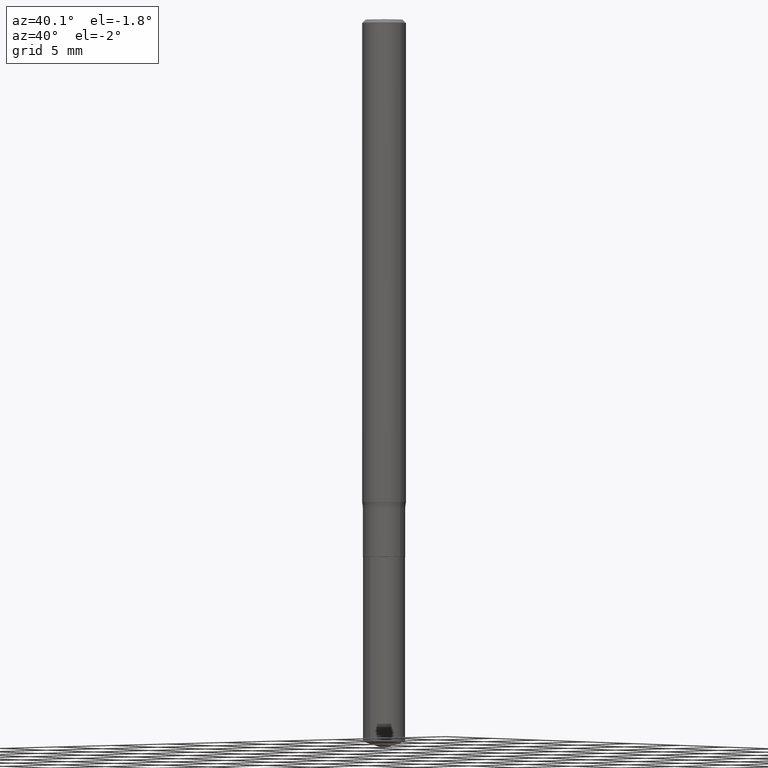
[diagram: clean part render]
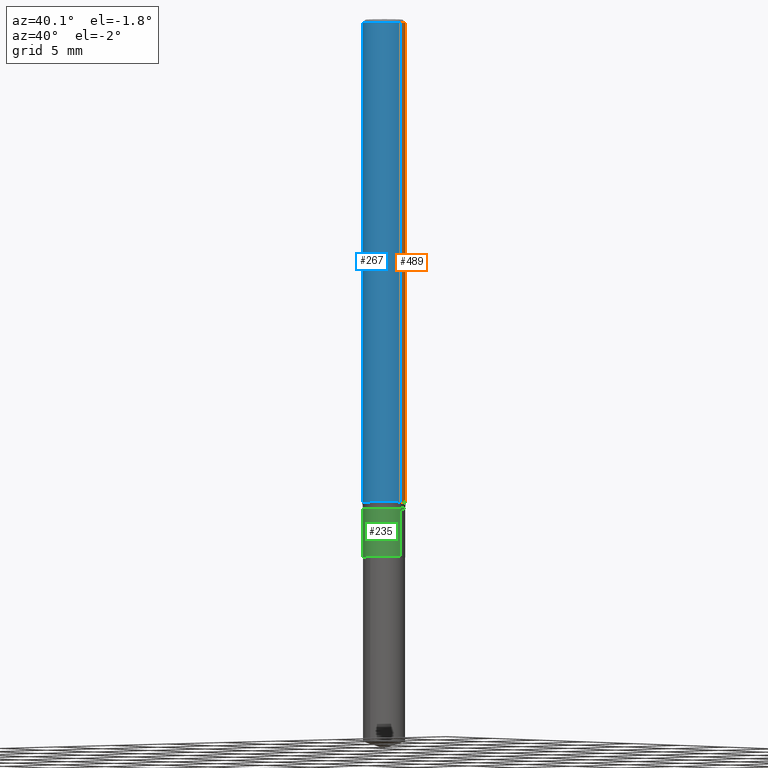
[diagram: same view with three faces highlighted in distinct colors, each labeled with its STEP entity id]
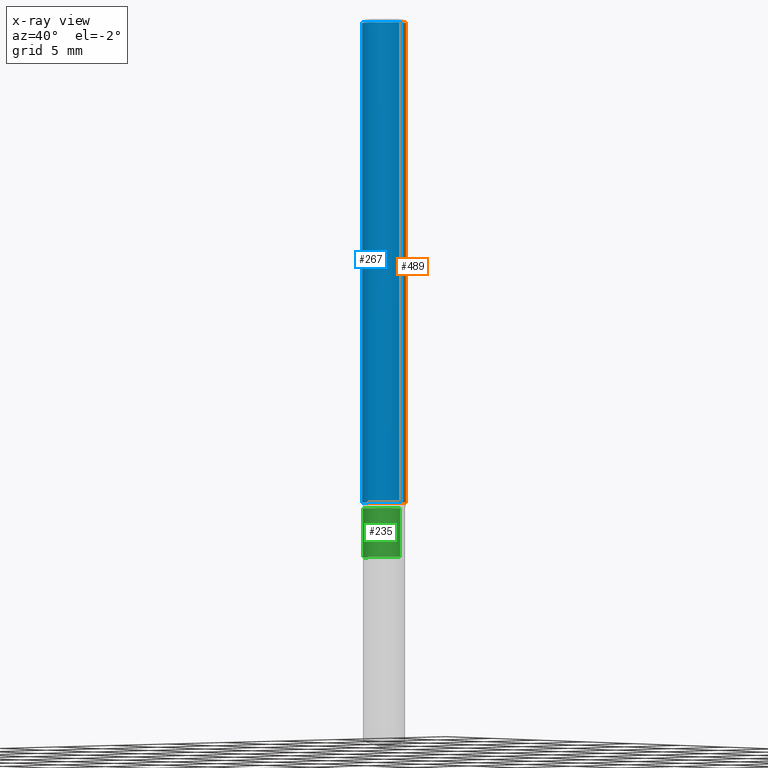
[diagram: x-ray of the same camera — body ghosted, the three highlighted faces saturated]
A machine part, auxiliary view with three faces highlighted in distinct colors.
The next image is the same camera in x-ray (body ghosted, the three faces saturated) — at least one of them is partly hidden behind the body in this view.
Their STEP definitions:

[orange] entity #489 — the highlighted cylindrical surface (edge-blend (fillet) strip) has radius 1.4999 mm, axis along (-0, 0, 1).
#13 = CARTESIAN_POINT ( 'NONE',  ( 3.189302213101490858E-29, -4.553478307640284611E-15, -1.304168020886234070 ) ) ;
#16 = AXIS2_PLACEMENT_3D ( 'NONE', #189, #236, #239 ) ;
#29 = AXIS2_PLACEMENT_3D ( 'NONE', #224, #327, #132 ) ;
#51 = EDGE_CURVE ( 'NONE', #458, #457, #301, .T. ) ;
#52 = DIRECTION ( 'NONE',  ( -2.445468806185136877E-29, 3.491481338843145188E-15, 1.000000000000000000 ) ) ;
#61 = VECTOR ( 'NONE', #52, 39.37007874015748143 ) ;
#68 = VECTOR ( 'NONE', #172, 39.37007874015748143 ) ;
#77 = CARTESIAN_POINT ( 'NONE',  ( 0.05905000000000014404, -4.965822253757659531E-15, -1.304168020886234070 ) ) ;
#89 = CARTESIAN_POINT ( 'NONE',  ( 0.05905000000000007465, -4.123439461173745750E-16, 2.879382386107504074E-30 ) ) ;
#132 = DIRECTION ( 'NONE',  ( 1.000000000000000000, -6.982962677686266711E-15, 4.876176775795936353E-29 ) ) ;
#140 = ORIENTED_EDGE ( 'NONE', *, *, #466, .F. ) ;
#157 = CARTESIAN_POINT ( 'NONE',  ( -0.05905000000000014404, -4.133902822173944329E-15, -1.304168020886234070 ) ) ;
#158 = ORIENTED_EDGE ( 'NONE', *, *, #168, .T. ) ;
#168 = EDGE_CURVE ( 'NONE', #457, #415, #328, .T. ) ;
#172 = DIRECTION ( 'NONE',  ( -2.445468806185136877E-29, 3.491481338843145188E-15, 1.000000000000000000 ) ) ;
#189 = CARTESIAN_POINT ( 'NONE',  ( 2.166073995078498372E-31, -3.092579595880335814E-17, -0.008857500000000056301 ) ) ;
#206 = DIRECTION ( 'NONE',  ( -2.445468806185136597E-29, 3.491481338843145583E-15, 1.000000000000000000 ) ) ;
#210 = CARTESIAN_POINT ( 'NONE',  ( 0.05904999999999999832, -4.432697420761773785E-16, -0.008857500000000056301 ) ) ;
#224 = CARTESIAN_POINT ( 'NONE',  ( 0.000000000000000000, 0.000000000000000000, 0.000000000000000000 ) ) ;
#236 = DIRECTION ( 'NONE',  ( -2.445468806185136597E-29, 3.491481338843145583E-15, 1.000000000000000000 ) ) ;
#239 = DIRECTION ( 'NONE',  ( 1.000000000000000000, -6.982962677686266711E-15, 0.000000000000000000 ) ) ;
#248 = EDGE_CURVE ( 'NONE', #480, #415, #302, .T. ) ;
#250 = DIRECTION ( 'NONE',  ( 1.000000000000000000, -6.982962677686271444E-15, 0.000000000000000000 ) ) ;
#264 = CARTESIAN_POINT ( 'NONE',  ( -0.05905000000000007465, 4.195754854663396902E-16, -2.904631170795525395E-30 ) ) ;
#301 = CIRCLE ( 'NONE', #421, 0.05905000000000015098 ) ;
#302 = CIRCLE ( 'NONE', #16, 0.05904999999999999832 ) ;
#327 = DIRECTION ( 'NONE',  ( -2.445468806185136597E-29, 3.491481338843145583E-15, 1.000000000000000000 ) ) ;
#328 = LINE ( 'NONE', #264, #68 ) ;
#353 = CARTESIAN_POINT ( 'NONE',  ( -0.05904999999999999832, -1.872626566333202982E-15, -0.008857500000000056301 ) ) ;
#407 = FACE_OUTER_BOUND ( 'NONE', #471, .T. ) ;
#415 = VERTEX_POINT ( 'NONE', #353 ) ;
#418 = ORIENTED_EDGE ( 'NONE', *, *, #248, .F. ) ;
#421 = AXIS2_PLACEMENT_3D ( 'NONE', #13, #206, #250 ) ;
#427 = LINE ( 'NONE', #89, #61 ) ;
#448 = ORIENTED_EDGE ( 'NONE', *, *, #51, .T. ) ;
#457 = VERTEX_POINT ( 'NONE', #157 ) ;
#458 = VERTEX_POINT ( 'NONE', #77 ) ;
#466 = EDGE_CURVE ( 'NONE', #458, #480, #427, .T. ) ;
#471 = EDGE_LOOP ( 'NONE', ( #448, #158, #418, #140 ) ) ;
#474 = CYLINDRICAL_SURFACE ( 'NONE', #29, 0.05905000000000007465 ) ;
#480 = VERTEX_POINT ( 'NONE', #210 ) ;
#489 = ADVANCED_FACE ( 'NONE', ( #407 ), #474, .T. ) ;

[blue] entity #267 — the highlighted cylindrical surface (edge-blend (fillet) strip) has radius 1.4999 mm, axis along (-0, 0, 1).
#23 = EDGE_LOOP ( 'NONE', ( #186, #487, #274, #45 ) ) ;
#24 = DIRECTION ( 'NONE',  ( -2.445468806185136597E-29, 3.491481338843145583E-15, 1.000000000000000000 ) ) ;
#39 = DIRECTION ( 'NONE',  ( 1.000000000000000000, -6.982962677686266711E-15, 4.876176775795936353E-29 ) ) ;
#45 = ORIENTED_EDGE ( 'NONE', *, *, #207, .F. ) ;
#52 = DIRECTION ( 'NONE',  ( -2.445468806185136877E-29, 3.491481338843145188E-15, 1.000000000000000000 ) ) ;
#61 = VECTOR ( 'NONE', #52, 39.37007874015748143 ) ;
#68 = VECTOR ( 'NONE', #172, 39.37007874015748143 ) ;
#77 = CARTESIAN_POINT ( 'NONE',  ( 0.05905000000000014404, -4.965822253757659531E-15, -1.304168020886234070 ) ) ;
#87 = AXIS2_PLACEMENT_3D ( 'NONE', #109, #382, #39 ) ;
#89 = CARTESIAN_POINT ( 'NONE',  ( 0.05905000000000007465, -4.123439461173745750E-16, 2.879382386107504074E-30 ) ) ;
#99 = CARTESIAN_POINT ( 'NONE',  ( 3.189302213101490858E-29, -4.553478307640284611E-15, -1.304168020886234070 ) ) ;
#109 = CARTESIAN_POINT ( 'NONE',  ( 0.000000000000000000, 0.000000000000000000, 0.000000000000000000 ) ) ;
#111 = AXIS2_PLACEMENT_3D ( 'NONE', #430, #24, #218 ) ;
#119 = CIRCLE ( 'NONE', #111, 0.05904999999999999832 ) ;
#149 = CYLINDRICAL_SURFACE ( 'NONE', #87, 0.05905000000000007465 ) ;
#157 = CARTESIAN_POINT ( 'NONE',  ( -0.05905000000000014404, -4.133902822173944329E-15, -1.304168020886234070 ) ) ;
#168 = EDGE_CURVE ( 'NONE', #457, #415, #328, .T. ) ;
#172 = DIRECTION ( 'NONE',  ( -2.445468806185136877E-29, 3.491481338843145188E-15, 1.000000000000000000 ) ) ;
#174 = AXIS2_PLACEMENT_3D ( 'NONE', #99, #260, #401 ) ;
#186 = ORIENTED_EDGE ( 'NONE', *, *, #168, .F. ) ;
#207 = EDGE_CURVE ( 'NONE', #415, #480, #119, .T. ) ;
#210 = CARTESIAN_POINT ( 'NONE',  ( 0.05904999999999999832, -4.432697420761773785E-16, -0.008857500000000056301 ) ) ;
#218 = DIRECTION ( 'NONE',  ( 1.000000000000000000, -6.982962677686266711E-15, 0.000000000000000000 ) ) ;
#223 = EDGE_CURVE ( 'NONE', #457, #458, #242, .T. ) ;
#242 = CIRCLE ( 'NONE', #174, 0.05905000000000015098 ) ;
#260 = DIRECTION ( 'NONE',  ( -2.445468806185136597E-29, 3.491481338843145583E-15, 1.000000000000000000 ) ) ;
#264 = CARTESIAN_POINT ( 'NONE',  ( -0.05905000000000007465, 4.195754854663396902E-16, -2.904631170795525395E-30 ) ) ;
#267 = ADVANCED_FACE ( 'NONE', ( #410 ), #149, .T. ) ;
#274 = ORIENTED_EDGE ( 'NONE', *, *, #466, .T. ) ;
#328 = LINE ( 'NONE', #264, #68 ) ;
#353 = CARTESIAN_POINT ( 'NONE',  ( -0.05904999999999999832, -1.872626566333202982E-15, -0.008857500000000056301 ) ) ;
#382 = DIRECTION ( 'NONE',  ( -2.445468806185136597E-29, 3.491481338843145583E-15, 1.000000000000000000 ) ) ;
#401 = DIRECTION ( 'NONE',  ( 1.000000000000000000, -6.982962677686271444E-15, 0.000000000000000000 ) ) ;
#410 = FACE_OUTER_BOUND ( 'NONE', #23, .T. ) ;
#415 = VERTEX_POINT ( 'NONE', #353 ) ;
#427 = LINE ( 'NONE', #89, #61 ) ;
#430 = CARTESIAN_POINT ( 'NONE',  ( 2.166073995078498372E-31, -3.092579595880335814E-17, -0.008857500000000056301 ) ) ;
#457 = VERTEX_POINT ( 'NONE', #157 ) ;
#458 = VERTEX_POINT ( 'NONE', #77 ) ;
#466 = EDGE_CURVE ( 'NONE', #458, #480, #427, .T. ) ;
#480 = VERTEX_POINT ( 'NONE', #210 ) ;
#487 = ORIENTED_EDGE ( 'NONE', *, *, #223, .T. ) ;

[green] entity #235 — the highlighted cylindrical surface (edge-blend (fillet) strip) has radius 1.4503 mm, axis along (-0, 0, 1).
#2 = VERTEX_POINT ( 'NONE', #347 ) ;
#66 = VERTEX_POINT ( 'NONE', #321 ) ;
#103 = DIRECTION ( 'NONE',  ( -2.445468806185136597E-29, 3.491481338843145583E-15, 1.000000000000000000 ) ) ;
#113 = EDGE_LOOP ( 'NONE', ( #171, #442, #396, #485 ) ) ;
#114 = CARTESIAN_POINT ( 'NONE',  ( 3.231687027373658286E-29, -4.613992589281217737E-15, -1.321500000000000119 ) ) ;
#123 = EDGE_CURVE ( 'NONE', #386, #66, #395, .T. ) ;
#138 = CIRCLE ( 'NONE', #288, 0.05709999999999998410 ) ;
#171 = ORIENTED_EDGE ( 'NONE', *, *, #440, .F. ) ;
#177 = FACE_OUTER_BOUND ( 'NONE', #113, .T. ) ;
#201 = VECTOR ( 'NONE', #357, 39.37007874015748143 ) ;
#202 = AXIS2_PLACEMENT_3D ( 'NONE', #114, #233, #340 ) ;
#229 = CARTESIAN_POINT ( 'NONE',  ( -0.05709999999999998410, -4.436615566722541594E-15, -1.452299999999999924 ) ) ;
#233 = DIRECTION ( 'NONE',  ( -2.445468806185136597E-29, 3.491481338843145583E-15, 1.000000000000000000 ) ) ;
#235 = ADVANCED_FACE ( 'NONE', ( #177 ), #308, .T. ) ;
#253 = CARTESIAN_POINT ( 'NONE',  ( 0.05709999999999998410, -5.469405517297786040E-15, -1.452299999999999924 ) ) ;
#269 = VERTEX_POINT ( 'NONE', #229 ) ;
#271 = DIRECTION ( 'NONE',  ( -2.445468806185136597E-29, 3.491481338843145583E-15, 1.000000000000000000 ) ) ;
#288 = AXIS2_PLACEMENT_3D ( 'NONE', #455, #271, #380 ) ;
#308 = CYLINDRICAL_SURFACE ( 'NONE', #453, 0.05709999999999997716 ) ;
#313 = LINE ( 'NONE', #384, #201 ) ;
#316 = EDGE_CURVE ( 'NONE', #269, #386, #138, .T. ) ;
#321 = CARTESIAN_POINT ( 'NONE',  ( 0.05709999999999997022, -5.012719758177102563E-15, -1.321500000000000119 ) ) ;
#340 = DIRECTION ( 'NONE',  ( 1.000000000000000000, -6.982962677686262766E-15, 0.000000000000000000 ) ) ;
#347 = CARTESIAN_POINT ( 'NONE',  ( -0.05709999999999997022, -4.436615566722541594E-15, -1.321500000000000119 ) ) ;
#357 = DIRECTION ( 'NONE',  ( -2.445468806185136877E-29, 3.491481338843145188E-15, 1.000000000000000000 ) ) ;
#363 = CARTESIAN_POINT ( 'NONE',  ( 0.05709999999999997716, -3.987271688958856639E-16, 2.784296938979478177E-30 ) ) ;
#380 = DIRECTION ( 'NONE',  ( 1.000000000000000000, -6.982962677686261189E-15, 0.000000000000000000 ) ) ;
#383 = EDGE_CURVE ( 'NONE', #2, #66, #462, .T. ) ;
#384 = CARTESIAN_POINT ( 'NONE',  ( -0.05709999999999997716, 4.057199021190170439E-16, -2.808711936535549889E-30 ) ) ;
#386 = VERTEX_POINT ( 'NONE', #253 ) ;
#395 = LINE ( 'NONE', #363, #429 ) ;
#396 = ORIENTED_EDGE ( 'NONE', *, *, #123, .T. ) ;
#414 = DIRECTION ( 'NONE',  ( 1.000000000000000000, -6.982962677686266711E-15, 4.876176775795935793E-29 ) ) ;
#416 = CARTESIAN_POINT ( 'NONE',  ( 0.000000000000000000, 0.000000000000000000, 0.000000000000000000 ) ) ;
#429 = VECTOR ( 'NONE', #477, 39.37007874015748143 ) ;
#440 = EDGE_CURVE ( 'NONE', #269, #2, #313, .T. ) ;
#442 = ORIENTED_EDGE ( 'NONE', *, *, #316, .T. ) ;
#453 = AXIS2_PLACEMENT_3D ( 'NONE', #416, #103, #414 ) ;
#455 = CARTESIAN_POINT ( 'NONE',  ( 3.551554347222674167E-29, -5.070678348401900425E-15, -1.452299999999999924 ) ) ;
#462 = CIRCLE ( 'NONE', #202, 0.05709999999999997022 ) ;
#477 = DIRECTION ( 'NONE',  ( -2.445468806185136877E-29, 3.491481338843145188E-15, 1.000000000000000000 ) ) ;
#485 = ORIENTED_EDGE ( 'NONE', *, *, #383, .F. ) ;